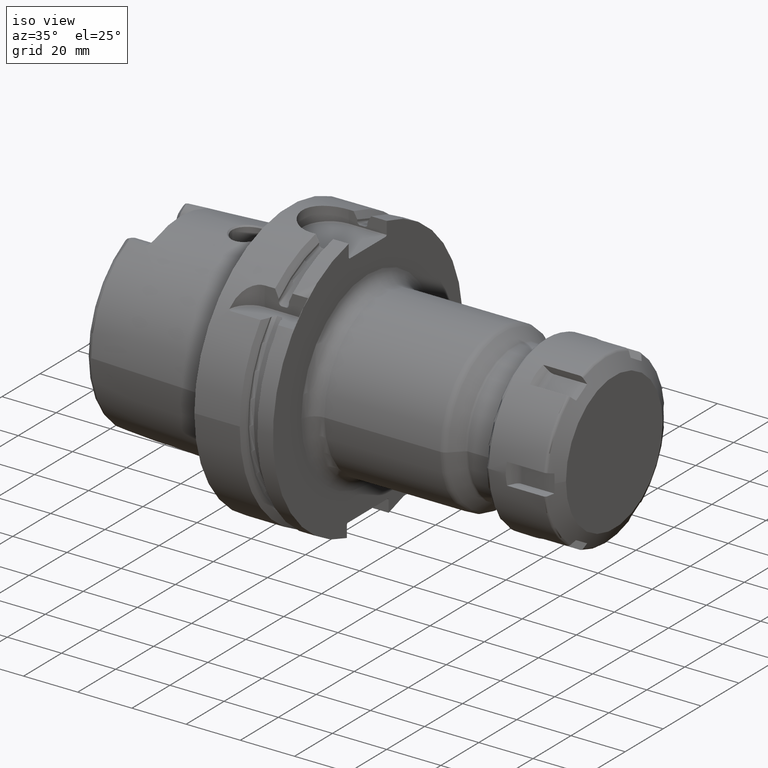
[diagram: clean part render]
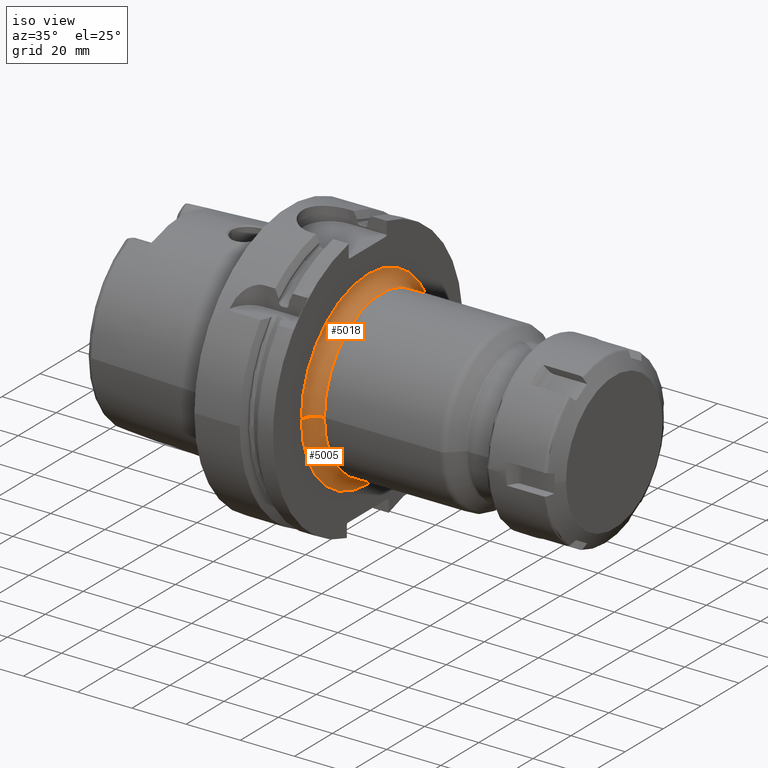
[diagram: same view with one multi-face feature highlighted, each face labeled with its STEP entity id]
A machine part, iso view. The highlighted faces form ONE feature: a constant-radius fillet chain: 2 tangent blend faces with common blend radius 5 mm. The faces share edges in the B-rep.
Their STEP definitions:
[1] entity #5005 (Torus):
#1226=CARTESIAN_POINT('',(2.9E1,0.E0,0.E0));
#1227=DIRECTION('',(1.E0,0.E0,0.E0));
#1228=DIRECTION('',(0.E0,-1.E0,0.E0));
#1229=AXIS2_PLACEMENT_3D('',#1226,#1227,#1228);
#1782=CARTESIAN_POINT('',(3.4E1,-3.5E1,3.981537322062E-14));
#1783=DIRECTION('',(0.E0,0.E0,-1.E0));
#1784=DIRECTION('',(-1.E0,0.E0,0.E0));
#1785=AXIS2_PLACEMENT_3D('',#1782,#1783,#1784);
#1787=CARTESIAN_POINT('',(3.4E1,3.5E1,-4.381217610927E-14));
#1788=DIRECTION('',(0.E0,0.E0,1.E0));
#1789=DIRECTION('',(-1.E0,0.E0,0.E0));
#1790=AXIS2_PLACEMENT_3D('',#1787,#1788,#1789);
#1821=CARTESIAN_POINT('',(3.4E1,0.E0,0.E0));
#1822=DIRECTION('',(1.E0,0.E0,0.E0));
#1823=DIRECTION('',(0.E0,-1.E0,0.E0));
#1824=AXIS2_PLACEMENT_3D('',#1821,#1822,#1823);
#3200=CARTESIAN_POINT('',(2.9E1,-3.5E1,0.E0));
#3201=CARTESIAN_POINT('',(2.9E1,3.5E1,0.E0));
#3202=VERTEX_POINT('',#3200);
#3203=VERTEX_POINT('',#3201);
#3204=CARTESIAN_POINT('',(3.4E1,-3.E1,0.E0));
#3205=CARTESIAN_POINT('',(3.4E1,3.E1,0.E0));
#3206=VERTEX_POINT('',#3204);
#3207=VERTEX_POINT('',#3205);
#4991=CARTESIAN_POINT('',(3.4E1,0.E0,0.E0));
#4992=DIRECTION('',(1.E0,0.E0,0.E0));
#4993=DIRECTION('',(0.E0,-9.999967160299E-1,2.562797194613E-3));
#4994=AXIS2_PLACEMENT_3D('',#4991,#4992,#4993);
#4995=TOROIDAL_SURFACE('',#4994,3.5E1,5.E0);
#4996=ORIENTED_EDGE('',*,*,#4441,.F.);
#4998=ORIENTED_EDGE('',*,*,#4997,.T.);
#5000=ORIENTED_EDGE('',*,*,#4999,.T.);
#5002=ORIENTED_EDGE('',*,*,#5001,.F.);
#5003=EDGE_LOOP('',(#4996,#4998,#5000,#5002));
#5004=FACE_OUTER_BOUND('',#5003,.F.);
#5005=ADVANCED_FACE('',(#5004),#4995,.F.);
#1230=CIRCLE('',#1229,3.5E1);
#1786=CIRCLE('',#1785,5.E0);
#1791=CIRCLE('',#1790,5.E0);
#1825=CIRCLE('',#1824,3.E1);
#4441=EDGE_CURVE('',#3202,#3203,#1230,.T.);
#4997=EDGE_CURVE('',#3202,#3206,#1786,.T.);
#4999=EDGE_CURVE('',#3206,#3207,#1825,.T.);
#5001=EDGE_CURVE('',#3203,#3207,#1791,.T.);
[2] entity #5018 (Torus):
#1231=CARTESIAN_POINT('',(2.9E1,0.E0,0.E0));
#1232=DIRECTION('',(1.E0,0.E0,0.E0));
#1233=DIRECTION('',(0.E0,1.E0,0.E0));
#1234=AXIS2_PLACEMENT_3D('',#1231,#1232,#1233);
#1782=CARTESIAN_POINT('',(3.4E1,-3.5E1,3.981537322062E-14));
#1783=DIRECTION('',(0.E0,0.E0,-1.E0));
#1784=DIRECTION('',(-1.E0,0.E0,0.E0));
#1785=AXIS2_PLACEMENT_3D('',#1782,#1783,#1784);
#1787=CARTESIAN_POINT('',(3.4E1,3.5E1,-4.381217610927E-14));
#1788=DIRECTION('',(0.E0,0.E0,1.E0));
#1789=DIRECTION('',(-1.E0,0.E0,0.E0));
#1790=AXIS2_PLACEMENT_3D('',#1787,#1788,#1789);
#1797=CARTESIAN_POINT('',(3.4E1,0.E0,0.E0));
#1798=DIRECTION('',(1.E0,0.E0,0.E0));
#1799=DIRECTION('',(0.E0,1.E0,0.E0));
#1800=AXIS2_PLACEMENT_3D('',#1797,#1798,#1799);
#3200=CARTESIAN_POINT('',(2.9E1,-3.5E1,0.E0));
#3201=CARTESIAN_POINT('',(2.9E1,3.5E1,0.E0));
#3202=VERTEX_POINT('',#3200);
#3203=VERTEX_POINT('',#3201);
#3204=CARTESIAN_POINT('',(3.4E1,-3.E1,0.E0));
#3205=CARTESIAN_POINT('',(3.4E1,3.E1,0.E0));
#3206=VERTEX_POINT('',#3204);
#3207=VERTEX_POINT('',#3205);
#5006=CARTESIAN_POINT('',(3.4E1,0.E0,0.E0));
#5007=DIRECTION('',(1.E0,0.E0,0.E0));
#5008=DIRECTION('',(0.E0,9.999967160299E-1,-2.562797194613E-3));
#5009=AXIS2_PLACEMENT_3D('',#5006,#5007,#5008);
#5010=TOROIDAL_SURFACE('',#5009,3.5E1,5.E0);
#5011=ORIENTED_EDGE('',*,*,#4443,.F.);
#5012=ORIENTED_EDGE('',*,*,#5001,.T.);
#5014=ORIENTED_EDGE('',*,*,#5013,.T.);
#5015=ORIENTED_EDGE('',*,*,#4997,.F.);
#5016=EDGE_LOOP('',(#5011,#5012,#5014,#5015));
#5017=FACE_OUTER_BOUND('',#5016,.F.);
#5018=ADVANCED_FACE('',(#5017),#5010,.F.);
#1235=CIRCLE('',#1234,3.5E1);
#1786=CIRCLE('',#1785,5.E0);
#1791=CIRCLE('',#1790,5.E0);
#1801=CIRCLE('',#1800,3.E1);
#4443=EDGE_CURVE('',#3203,#3202,#1235,.T.);
#4997=EDGE_CURVE('',#3202,#3206,#1786,.T.);
#5001=EDGE_CURVE('',#3203,#3207,#1791,.T.);
#5013=EDGE_CURVE('',#3207,#3206,#1801,.T.);